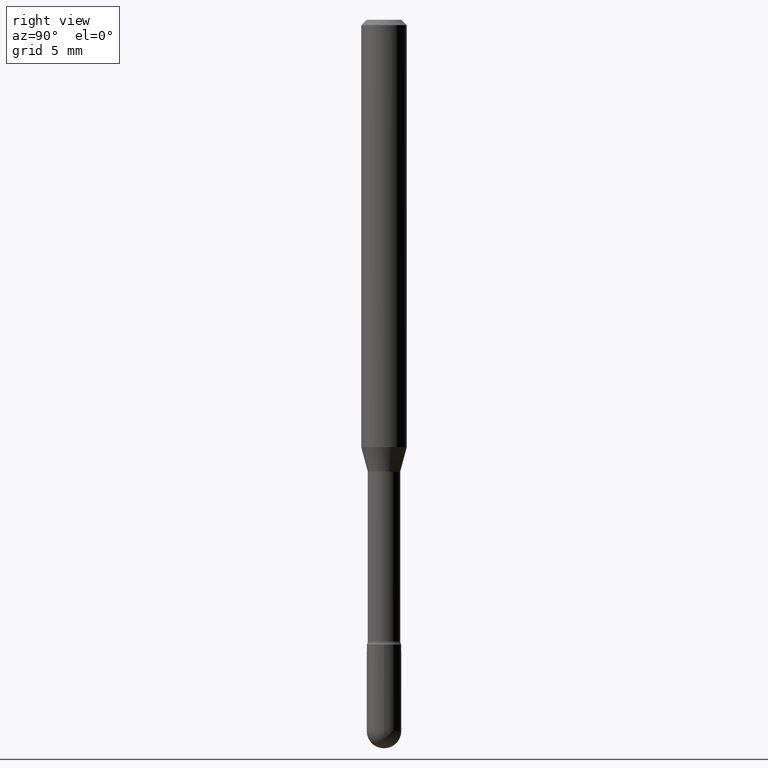
[diagram: clean part render]
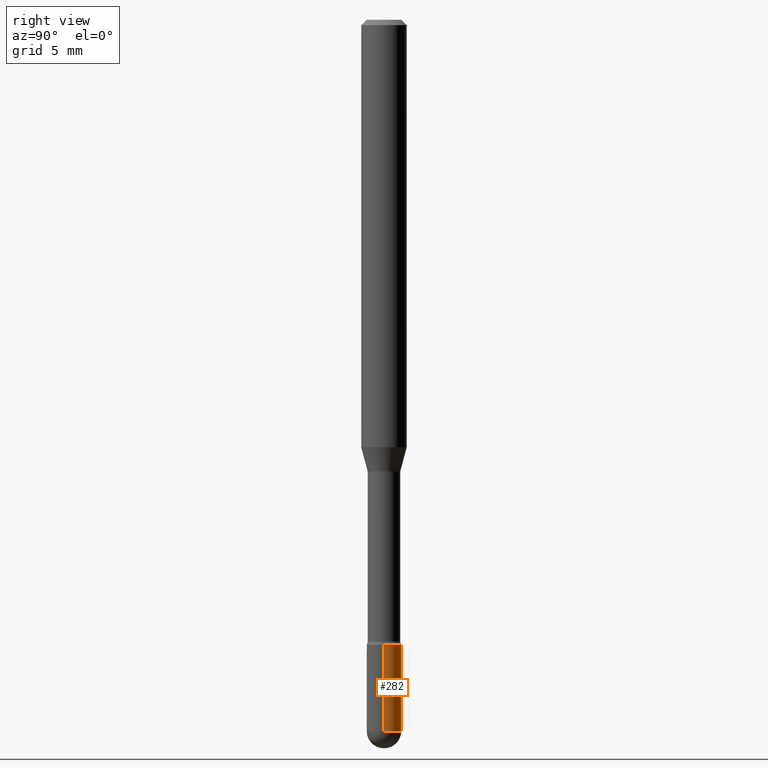
[diagram: same view with one face highlighted and labeled with its STEP entity id]
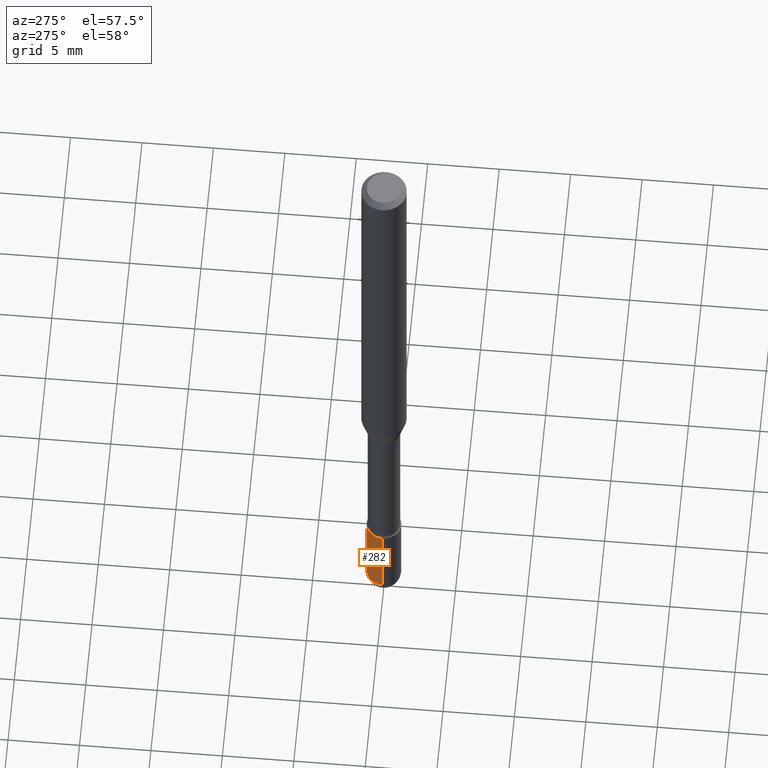
[diagram: same view with one face highlighted and labeled with its STEP entity id]
A machine part, right view. The second image highlights one B-rep face of the part: STEP entity #282.
A second angle (auxiliary view) of the same face is appended — the face is thin or edge-on in the first view.
In plain terms, the highlighted cylindrical surface (edge-blend (fillet) strip) has radius 1.2065 mm, axis along (-0, 0, 1).
Its self-contained STEP definition (entity closure, byte-faithful):
#22 = CARTESIAN_POINT ( 'NONE',  ( -0.04750000000000000749, -6.064996105617570464E-15, -1.952499999999999902 ) ) ;
#29 = ORIENTED_EDGE ( 'NONE', *, *, #504, .T. ) ;
#64 = CARTESIAN_POINT ( 'NONE',  ( 0.04750000000000000749, -3.316907271900977082E-16, 2.316183968503069432E-30 ) ) ;
#67 = DIRECTION ( 'NONE',  ( 1.000000000000000000, -6.982962677686266711E-15, 4.876176775795934672E-29 ) ) ;
#79 = DIRECTION ( 'NONE',  ( -2.445468806185136597E-29, 3.491481338843145583E-15, 1.000000000000000000 ) ) ;
#123 = VERTEX_POINT ( 'NONE', #361 ) ;
#138 = DIRECTION ( 'NONE',  ( -2.445468806185136597E-29, 3.491481338843145583E-15, 1.000000000000000000 ) ) ;
#151 = CIRCLE ( 'NONE', #304, 0.04750000000000000749 ) ;
#161 = AXIS2_PLACEMENT_3D ( 'NONE', #480, #265, #484 ) ;
#194 = CARTESIAN_POINT ( 'NONE',  ( 0.000000000000000000, 0.000000000000000000, 0.000000000000000000 ) ) ;
#198 = VERTEX_POINT ( 'NONE', #368 ) ;
#199 = EDGE_CURVE ( 'NONE', #198, #337, #332, .T. ) ;
#202 = ORIENTED_EDGE ( 'NONE', *, *, #563, .T. ) ;
#228 = VERTEX_POINT ( 'NONE', #538 ) ;
#237 = CYLINDRICAL_SURFACE ( 'NONE', #517, 0.04750000000000000749 ) ;
#241 = FACE_OUTER_BOUND ( 'NONE', #273, .T. ) ;
#242 = VECTOR ( 'NONE', #266, 39.37007874015748143 ) ;
#251 = ORIENTED_EDGE ( 'NONE', *, *, #199, .T. ) ;
#265 = DIRECTION ( 'NONE',  ( -2.445468806185136597E-29, 3.491481338843145583E-15, 1.000000000000000000 ) ) ;
#266 = DIRECTION ( 'NONE',  ( -2.445468806185136877E-29, 3.491481338843145188E-15, 1.000000000000000000 ) ) ;
#273 = EDGE_LOOP ( 'NONE', ( #251, #202, #483, #511, #29 ) ) ;
#282 = ADVANCED_FACE ( 'NONE', ( #241 ), #237, .T. ) ;
#283 = CARTESIAN_POINT ( 'NONE',  ( 0.04750000000000000749, -6.734194632293715468E-15, -1.952499999999999902 ) ) ;
#304 = AXIS2_PLACEMENT_3D ( 'NONE', #529, #138, #449 ) ;
#323 = DIRECTION ( 'NONE',  ( -2.445468806185136597E-29, 3.491481338843145583E-15, 1.000000000000000000 ) ) ;
#329 = DIRECTION ( 'NONE',  ( 1.000000000000000000, -6.982962677686260400E-15, 0.000000000000000000 ) ) ;
#332 = CIRCLE ( 'NONE', #443, 0.04750000000000000749 ) ;
#334 = VERTEX_POINT ( 'NONE', #283 ) ;
#335 = EDGE_CURVE ( 'NONE', #334, #228, #456, .T. ) ;
#337 = VERTEX_POINT ( 'NONE', #22 ) ;
#344 = VECTOR ( 'NONE', #415, 39.37007874015748143 ) ;
#359 = LINE ( 'NONE', #363, #242 ) ;
#361 = CARTESIAN_POINT ( 'NONE',  ( -0.04749999999999999362, -6.064996105617570464E-15, -1.715000000000000080 ) ) ;
#363 = CARTESIAN_POINT ( 'NONE',  ( -0.04750000000000000749, 3.375077994860476415E-16, -2.336494167871080260E-30 ) ) ;
#368 = CARTESIAN_POINT ( 'NONE',  ( 3.316907271901453357E-16, 0.04749999999999317268, -1.952500000000000346 ) ) ;
#385 = CIRCLE ( 'NONE', #161, 0.04749999999999999362 ) ;
#395 = EDGE_CURVE ( 'NONE', #228, #123, #385, .T. ) ;
#415 = DIRECTION ( 'NONE',  ( -2.445468806185136877E-29, 3.491481338843145188E-15, 1.000000000000000000 ) ) ;
#443 = AXIS2_PLACEMENT_3D ( 'NONE', #515, #323, #329 ) ;
#449 = DIRECTION ( 'NONE',  ( 1.000000000000000000, -6.982962677686260400E-15, 0.000000000000000000 ) ) ;
#456 = LINE ( 'NONE', #64, #344 ) ;
#480 = CARTESIAN_POINT ( 'NONE',  ( 4.193979002607509757E-29, -5.987890496115994688E-15, -1.715000000000000080 ) ) ;
#483 = ORIENTED_EDGE ( 'NONE', *, *, #395, .F. ) ;
#484 = DIRECTION ( 'NONE',  ( 1.000000000000000000, -6.982962677686261977E-15, 0.000000000000000000 ) ) ;
#504 = EDGE_CURVE ( 'NONE', #334, #198, #151, .T. ) ;
#511 = ORIENTED_EDGE ( 'NONE', *, *, #335, .F. ) ;
#515 = CARTESIAN_POINT ( 'NONE',  ( 4.774777844076478914E-29, -6.817117314091241226E-15, -1.952499999999999902 ) ) ;
#517 = AXIS2_PLACEMENT_3D ( 'NONE', #194, #79, #67 ) ;
#529 = CARTESIAN_POINT ( 'NONE',  ( 4.774777844076478914E-29, -6.817117314091241226E-15, -1.952499999999999902 ) ) ;
#538 = CARTESIAN_POINT ( 'NONE',  ( 0.04749999999999999362, -6.319581223306092199E-15, -1.715000000000000080 ) ) ;
#563 = EDGE_CURVE ( 'NONE', #337, #123, #359, .T. ) ;